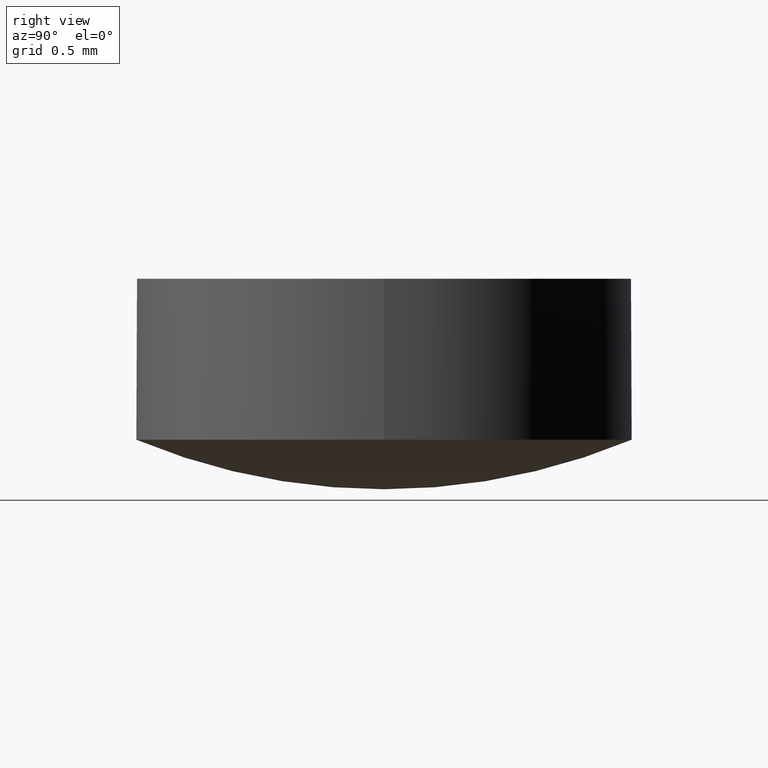
[diagram: clean part render]
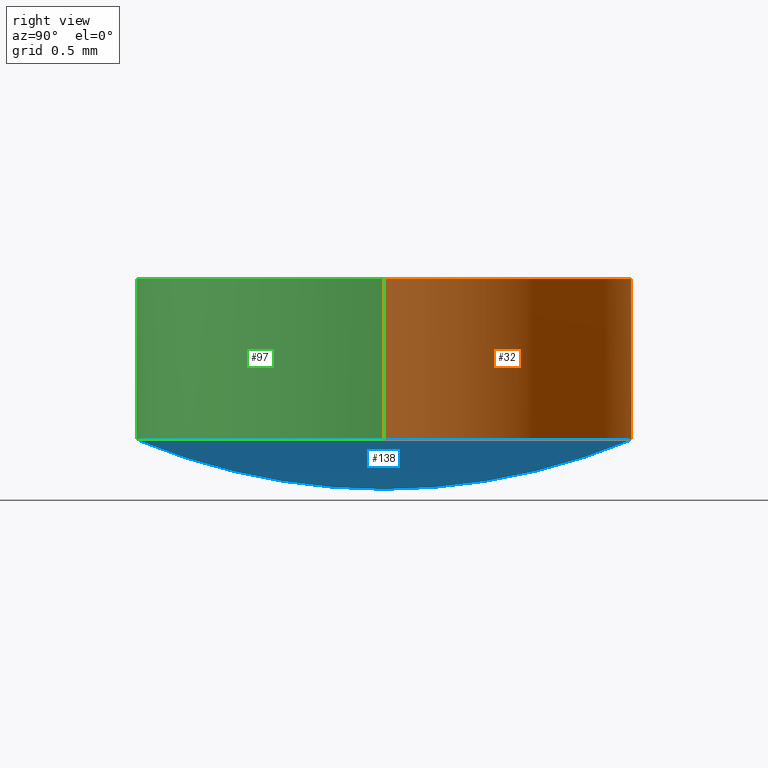
[diagram: same view with three faces highlighted in distinct colors, each labeled with its STEP entity id]
A machine part, right view with three faces highlighted in distinct colors.
Their STEP definitions:

[orange] entity #32 — the highlighted cylindrical surface (partial cylindrical patch) has radius 2 mm, axis along (-0, -0, 1).
#2 = EDGE_CURVE ( 'NONE', #110, #31, #141, .T. ) ;
#10 = VERTEX_POINT ( 'NONE', #53 ) ;
#12 = VECTOR ( 'NONE', #52, 1000.000000000000000 ) ;
#19 = EDGE_LOOP ( 'NONE', ( #44, #162, #151, #168, #33 ) ) ;
#21 = AXIS2_PLACEMENT_3D ( 'NONE', #66, #63, #164 ) ;
#22 = DIRECTION ( 'NONE',  ( 1.000000000000000000, 0.0000000000000000000, 0.0000000000000000000 ) ) ;
#24 = CARTESIAN_POINT ( 'NONE',  ( 1.999999999999994900, 51.57843641650232100, -398.6732588572372700 ) ) ;
#25 = VERTEX_POINT ( 'NONE', #152 ) ;
#29 = EDGE_CURVE ( 'NONE', #31, #10, #176, .T. ) ;
#31 = VERTEX_POINT ( 'NONE', #84 ) ;
#32 = ADVANCED_FACE ( 'NONE', ( #130 ), #83, .T. ) ;
#33 = ORIENTED_EDGE ( 'NONE', *, *, #175, .T. ) ;
#35 = CARTESIAN_POINT ( 'NONE',  ( -1.999999999999994900, 51.57843641650232100, -390.4282476773314600 ) ) ;
#39 = CARTESIAN_POINT ( 'NONE',  ( 0.0000000000000000000, 51.57843641650232100, -398.6732588572372700 ) ) ;
#44 = ORIENTED_EDGE ( 'NONE', *, *, #2, .T. ) ;
#52 = DIRECTION ( 'NONE',  ( -0.0000000000000000000, -0.0000000000000000000, 1.000000000000000000 ) ) ;
#53 = CARTESIAN_POINT ( 'NONE',  ( -1.999999999999994900, 51.57843641650232100, -397.3732588572372600 ) ) ;
#54 = AXIS2_PLACEMENT_3D ( 'NONE', #127, #139, #113 ) ;
#55 = DIRECTION ( 'NONE',  ( 1.000000000000000000, 0.0000000000000000000, 0.0000000000000000000 ) ) ;
#56 = CARTESIAN_POINT ( 'NONE',  ( 2.449293598294660600E-016, 53.57843641650229900, -398.6732588572372700 ) ) ;
#61 = CIRCLE ( 'NONE', #94, 1.999999999999994900 ) ;
#63 = DIRECTION ( 'NONE',  ( -0.0000000000000000000, -0.0000000000000000000, 1.000000000000000000 ) ) ;
#66 = CARTESIAN_POINT ( 'NONE',  ( 0.0000000000000000000, 51.57843641650232100, -398.6732588572372700 ) ) ;
#68 = CARTESIAN_POINT ( 'NONE',  ( 0.0000000000000000000, 51.57843641650232100, -397.3732588572372600 ) ) ;
#75 = AXIS2_PLACEMENT_3D ( 'NONE', #68, #114, #22 ) ;
#83 = CYLINDRICAL_SURFACE ( 'NONE', #54, 1.999999999999994900 ) ;
#84 = CARTESIAN_POINT ( 'NONE',  ( -1.999999999999994900, 51.57843641650232100, -398.6732588572372700 ) ) ;
#91 = CARTESIAN_POINT ( 'NONE',  ( 1.999999999999994900, 51.57843641650232100, -390.4282476773314600 ) ) ;
#94 = AXIS2_PLACEMENT_3D ( 'NONE', #39, #166, #55 ) ;
#96 = LINE ( 'NONE', #91, #148 ) ;
#103 = EDGE_CURVE ( 'NONE', #25, #10, #128, .T. ) ;
#110 = VERTEX_POINT ( 'NONE', #56 ) ;
#113 = DIRECTION ( 'NONE',  ( 1.000000000000000000, 0.0000000000000000000, 0.0000000000000000000 ) ) ;
#114 = DIRECTION ( 'NONE',  ( -0.0000000000000000000, -0.0000000000000000000, 1.000000000000000000 ) ) ;
#127 = CARTESIAN_POINT ( 'NONE',  ( 0.0000000000000000000, 51.57843641650232100, -390.4282476773314600 ) ) ;
#128 = CIRCLE ( 'NONE', #75, 1.999999999999994900 ) ;
#130 = FACE_OUTER_BOUND ( 'NONE', #19, .T. ) ;
#134 = EDGE_CURVE ( 'NONE', #140, #25, #96, .T. ) ;
#139 = DIRECTION ( 'NONE',  ( -0.0000000000000000000, -0.0000000000000000000, 1.000000000000000000 ) ) ;
#140 = VERTEX_POINT ( 'NONE', #24 ) ;
#141 = CIRCLE ( 'NONE', #21, 1.999999999999994900 ) ;
#148 = VECTOR ( 'NONE', #178, 1000.000000000000000 ) ;
#151 = ORIENTED_EDGE ( 'NONE', *, *, #103, .F. ) ;
#152 = CARTESIAN_POINT ( 'NONE',  ( 1.999999999999994900, 51.57843641650232100, -397.3732588572372600 ) ) ;
#162 = ORIENTED_EDGE ( 'NONE', *, *, #29, .T. ) ;
#164 = DIRECTION ( 'NONE',  ( 1.000000000000000000, 0.0000000000000000000, 0.0000000000000000000 ) ) ;
#166 = DIRECTION ( 'NONE',  ( -0.0000000000000000000, -0.0000000000000000000, 1.000000000000000000 ) ) ;
#168 = ORIENTED_EDGE ( 'NONE', *, *, #134, .F. ) ;
#175 = EDGE_CURVE ( 'NONE', #140, #110, #61, .T. ) ;
#176 = LINE ( 'NONE', #35, #12 ) ;
#178 = DIRECTION ( 'NONE',  ( -0.0000000000000000000, -0.0000000000000000000, 1.000000000000000000 ) ) ;

[blue] entity #138 — the highlighted spherical surface has radius 5.1998 mm.
#4 = SPHERICAL_SURFACE ( 'NONE', #116, 5.199817166830664300 ) ;
#7 = DIRECTION ( 'NONE',  ( 0.0000000000000000000, -1.000000000000000000, 0.0000000000000000000 ) ) ;
#24 = CARTESIAN_POINT ( 'NONE',  ( 1.999999999999994900, 51.57843641650232100, -398.6732588572372700 ) ) ;
#27 = ORIENTED_EDGE ( 'NONE', *, *, #109, .F. ) ;
#39 = CARTESIAN_POINT ( 'NONE',  ( 0.0000000000000000000, 51.57843641650232100, -398.6732588572372700 ) ) ;
#43 = DIRECTION ( 'NONE',  ( 0.0000000000000000000, 0.0000000000000000000, 1.000000000000000000 ) ) ;
#48 = AXIS2_PLACEMENT_3D ( 'NONE', #157, #69, #85 ) ;
#50 = CIRCLE ( 'NONE', #126, 5.199817166830662500 ) ;
#55 = DIRECTION ( 'NONE',  ( 1.000000000000000000, 0.0000000000000000000, 0.0000000000000000000 ) ) ;
#56 = CARTESIAN_POINT ( 'NONE',  ( 2.449293598294660600E-016, 53.57843641650229900, -398.6732588572372700 ) ) ;
#57 = AXIS2_PLACEMENT_3D ( 'NONE', #72, #133, #43 ) ;
#61 = CIRCLE ( 'NONE', #94, 1.999999999999994900 ) ;
#64 = ORIENTED_EDGE ( 'NONE', *, *, #175, .F. ) ;
#67 = VERTEX_POINT ( 'NONE', #101 ) ;
#69 = DIRECTION ( 'NONE',  ( -0.0000000000000000000, -0.0000000000000000000, 1.000000000000000000 ) ) ;
#70 = CARTESIAN_POINT ( 'NONE',  ( 0.0000000000000000000, 51.57843641650233500, -393.8734569271085800 ) ) ;
#72 = CARTESIAN_POINT ( 'NONE',  ( 0.0000000000000000000, 51.57843641650233500, -393.8734569271085800 ) ) ;
#79 = FACE_OUTER_BOUND ( 'NONE', #80, .T. ) ;
#80 = EDGE_LOOP ( 'NONE', ( #27, #112, #64, #111 ) ) ;
#85 = DIRECTION ( 'NONE',  ( 1.000000000000000000, 0.0000000000000000000, 0.0000000000000000000 ) ) ;
#87 = EDGE_CURVE ( 'NONE', #129, #140, #182, .T. ) ;
#90 = CIRCLE ( 'NONE', #57, 5.199817166830655400 ) ;
#93 = CARTESIAN_POINT ( 'NONE',  ( 0.0000000000000000000, 51.57843641650233500, -393.8734569271085800 ) ) ;
#94 = AXIS2_PLACEMENT_3D ( 'NONE', #39, #166, #55 ) ;
#101 = CARTESIAN_POINT ( 'NONE',  ( 0.0000000000000000000, 51.57843641650233500, -399.0732740939392300 ) ) ;
#109 = EDGE_CURVE ( 'NONE', #67, #129, #90, .T. ) ;
#110 = VERTEX_POINT ( 'NONE', #56 ) ;
#111 = ORIENTED_EDGE ( 'NONE', *, *, #87, .F. ) ;
#112 = ORIENTED_EDGE ( 'NONE', *, *, #163, .T. ) ;
#115 = DIRECTION ( 'NONE',  ( 1.224646799147353700E-016, 1.000000000000000000, 0.0000000000000000000 ) ) ;
#116 = AXIS2_PLACEMENT_3D ( 'NONE', #93, #167, #7 ) ;
#126 = AXIS2_PLACEMENT_3D ( 'NONE', #70, #131, #115 ) ;
#129 = VERTEX_POINT ( 'NONE', #142 ) ;
#131 = DIRECTION ( 'NONE',  ( 1.000000000000000000, -1.224646799147353200E-016, 0.0000000000000000000 ) ) ;
#133 = DIRECTION ( 'NONE',  ( -1.000000000000000000, -0.0000000000000000000, -0.0000000000000000000 ) ) ;
#138 = ADVANCED_FACE ( 'NONE', ( #79 ), #4, .T. ) ;
#140 = VERTEX_POINT ( 'NONE', #24 ) ;
#142 = CARTESIAN_POINT ( 'NONE',  ( 0.0000000000000000000, 49.57843641650235600, -398.6732588572372700 ) ) ;
#157 = CARTESIAN_POINT ( 'NONE',  ( 0.0000000000000000000, 51.57843641650232100, -398.6732588572372700 ) ) ;
#163 = EDGE_CURVE ( 'NONE', #67, #110, #50, .T. ) ;
#166 = DIRECTION ( 'NONE',  ( -0.0000000000000000000, -0.0000000000000000000, 1.000000000000000000 ) ) ;
#167 = DIRECTION ( 'NONE',  ( 1.000000000000000000, 0.0000000000000000000, 0.0000000000000000000 ) ) ;
#175 = EDGE_CURVE ( 'NONE', #140, #110, #61, .T. ) ;
#182 = CIRCLE ( 'NONE', #48, 1.999999999999994900 ) ;

[green] entity #97 — the highlighted cylindrical surface (partial cylindrical patch) has radius 2 mm, axis along (-0, -0, 1).
#3 = ORIENTED_EDGE ( 'NONE', *, *, #87, .T. ) ;
#5 = AXIS2_PLACEMENT_3D ( 'NONE', #81, #172, #99 ) ;
#10 = VERTEX_POINT ( 'NONE', #53 ) ;
#12 = VECTOR ( 'NONE', #52, 1000.000000000000000 ) ;
#17 = EDGE_CURVE ( 'NONE', #10, #25, #156, .T. ) ;
#24 = CARTESIAN_POINT ( 'NONE',  ( 1.999999999999994900, 51.57843641650232100, -398.6732588572372700 ) ) ;
#25 = VERTEX_POINT ( 'NONE', #152 ) ;
#29 = EDGE_CURVE ( 'NONE', #31, #10, #176, .T. ) ;
#31 = VERTEX_POINT ( 'NONE', #84 ) ;
#35 = CARTESIAN_POINT ( 'NONE',  ( -1.999999999999994900, 51.57843641650232100, -390.4282476773314600 ) ) ;
#45 = DIRECTION ( 'NONE',  ( 1.000000000000000000, 0.0000000000000000000, 0.0000000000000000000 ) ) ;
#48 = AXIS2_PLACEMENT_3D ( 'NONE', #157, #69, #85 ) ;
#52 = DIRECTION ( 'NONE',  ( -0.0000000000000000000, -0.0000000000000000000, 1.000000000000000000 ) ) ;
#53 = CARTESIAN_POINT ( 'NONE',  ( -1.999999999999994900, 51.57843641650232100, -397.3732588572372600 ) ) ;
#69 = DIRECTION ( 'NONE',  ( -0.0000000000000000000, -0.0000000000000000000, 1.000000000000000000 ) ) ;
#71 = ORIENTED_EDGE ( 'NONE', *, *, #185, .T. ) ;
#78 = AXIS2_PLACEMENT_3D ( 'NONE', #159, #183, #45 ) ;
#81 = CARTESIAN_POINT ( 'NONE',  ( 0.0000000000000000000, 51.57843641650232100, -397.3732588572372600 ) ) ;
#84 = CARTESIAN_POINT ( 'NONE',  ( -1.999999999999994900, 51.57843641650232100, -398.6732588572372700 ) ) ;
#85 = DIRECTION ( 'NONE',  ( 1.000000000000000000, 0.0000000000000000000, 0.0000000000000000000 ) ) ;
#87 = EDGE_CURVE ( 'NONE', #129, #140, #182, .T. ) ;
#91 = CARTESIAN_POINT ( 'NONE',  ( 1.999999999999994900, 51.57843641650232100, -390.4282476773314600 ) ) ;
#96 = LINE ( 'NONE', #91, #148 ) ;
#97 = ADVANCED_FACE ( 'NONE', ( #154 ), #123, .T. ) ;
#98 = AXIS2_PLACEMENT_3D ( 'NONE', #177, #143, #118 ) ;
#99 = DIRECTION ( 'NONE',  ( 1.000000000000000000, 0.0000000000000000000, 0.0000000000000000000 ) ) ;
#118 = DIRECTION ( 'NONE',  ( 1.000000000000000000, 0.0000000000000000000, 0.0000000000000000000 ) ) ;
#121 = EDGE_LOOP ( 'NONE', ( #149, #71, #3, #158, #160 ) ) ;
#123 = CYLINDRICAL_SURFACE ( 'NONE', #98, 1.999999999999994900 ) ;
#129 = VERTEX_POINT ( 'NONE', #142 ) ;
#134 = EDGE_CURVE ( 'NONE', #140, #25, #96, .T. ) ;
#140 = VERTEX_POINT ( 'NONE', #24 ) ;
#142 = CARTESIAN_POINT ( 'NONE',  ( 0.0000000000000000000, 49.57843641650235600, -398.6732588572372700 ) ) ;
#143 = DIRECTION ( 'NONE',  ( -0.0000000000000000000, -0.0000000000000000000, 1.000000000000000000 ) ) ;
#148 = VECTOR ( 'NONE', #178, 1000.000000000000000 ) ;
#149 = ORIENTED_EDGE ( 'NONE', *, *, #29, .F. ) ;
#152 = CARTESIAN_POINT ( 'NONE',  ( 1.999999999999994900, 51.57843641650232100, -397.3732588572372600 ) ) ;
#154 = FACE_OUTER_BOUND ( 'NONE', #121, .T. ) ;
#156 = CIRCLE ( 'NONE', #5, 1.999999999999994900 ) ;
#157 = CARTESIAN_POINT ( 'NONE',  ( 0.0000000000000000000, 51.57843641650232100, -398.6732588572372700 ) ) ;
#158 = ORIENTED_EDGE ( 'NONE', *, *, #134, .T. ) ;
#159 = CARTESIAN_POINT ( 'NONE',  ( 0.0000000000000000000, 51.57843641650232100, -398.6732588572372700 ) ) ;
#160 = ORIENTED_EDGE ( 'NONE', *, *, #17, .F. ) ;
#171 = CIRCLE ( 'NONE', #78, 1.999999999999994900 ) ;
#172 = DIRECTION ( 'NONE',  ( -0.0000000000000000000, -0.0000000000000000000, 1.000000000000000000 ) ) ;
#176 = LINE ( 'NONE', #35, #12 ) ;
#177 = CARTESIAN_POINT ( 'NONE',  ( 0.0000000000000000000, 51.57843641650232100, -390.4282476773314600 ) ) ;
#178 = DIRECTION ( 'NONE',  ( -0.0000000000000000000, -0.0000000000000000000, 1.000000000000000000 ) ) ;
#182 = CIRCLE ( 'NONE', #48, 1.999999999999994900 ) ;
#183 = DIRECTION ( 'NONE',  ( -0.0000000000000000000, -0.0000000000000000000, 1.000000000000000000 ) ) ;
#185 = EDGE_CURVE ( 'NONE', #31, #129, #171, .T. ) ;